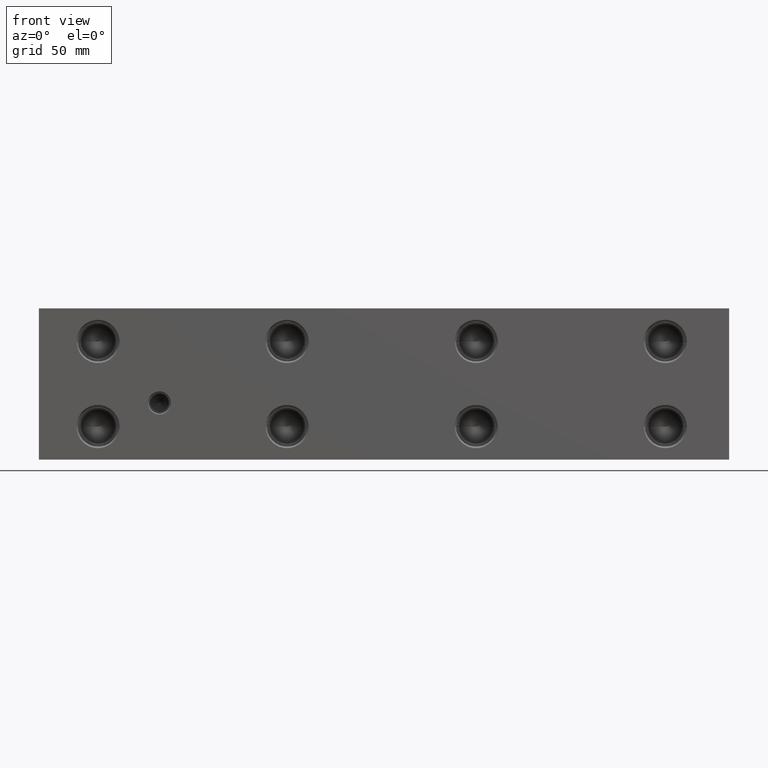
[diagram: clean part render]
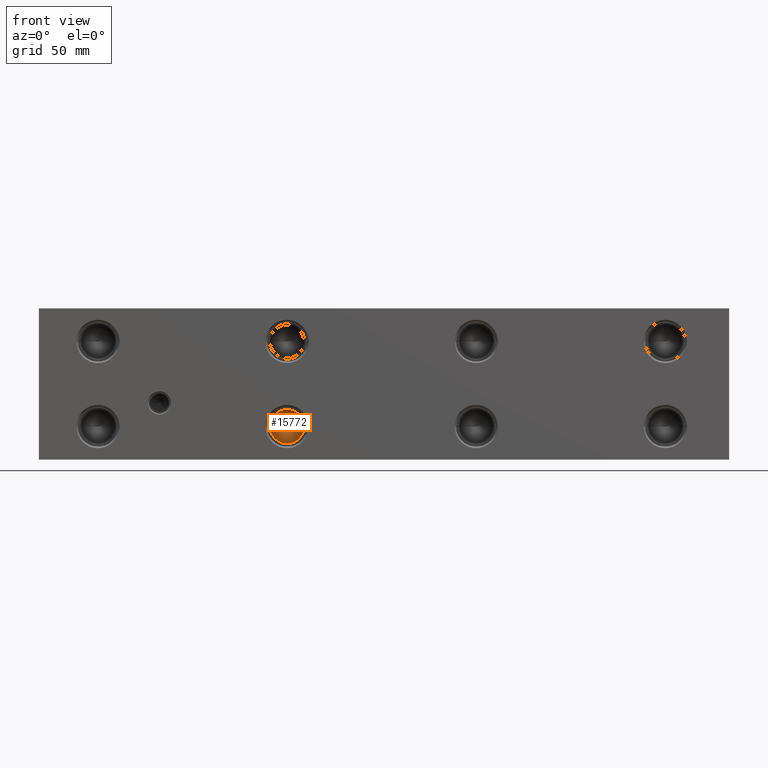
[diagram: same view with one face highlighted and labeled with its STEP entity id]
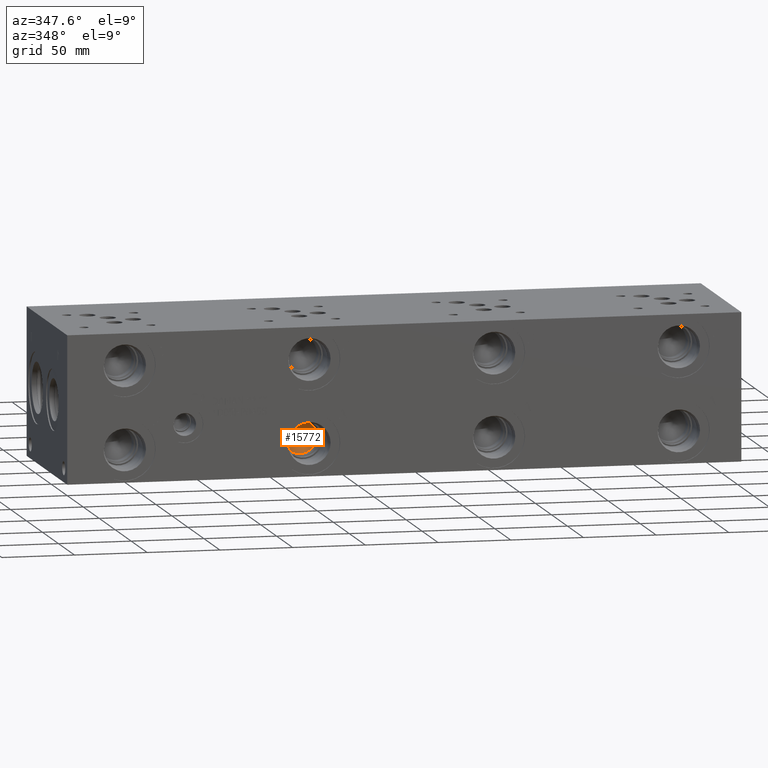
[diagram: same view with one face highlighted and labeled with its STEP entity id]
A machine part, front view. The second image highlights one B-rep face of the part: STEP entity #15772.
A second angle (auxiliary view) of the same face is appended — the face is thin or edge-on in the first view.
In plain terms, the highlighted conical surface has half-angle 60 deg.
Its self-contained STEP definition (entity closure, byte-faithful):
#53=CONICAL_SURFACE('',#16635,5.7531,1.0471975511966);
#598=CIRCLE('',#16636,11.5062);
#599=CIRCLE('',#16637,11.5062);
#2029=FACE_OUTER_BOUND('',#2949,.T.);
#2949=EDGE_LOOP('',(#13300,#13301,#13302,#13303));
#4440=LINE('',#26690,#5839);
#5839=VECTOR('',#19708,5.7531);
#7203=VERTEX_POINT('',#26686);
#7204=VERTEX_POINT('',#26687);
#7205=VERTEX_POINT('',#26689);
#9317=EDGE_CURVE('',#7203,#7204,#598,.T.);
#9318=EDGE_CURVE('',#7204,#7205,#4440,.T.);
#9319=EDGE_CURVE('',#7204,#7203,#599,.T.);
#13300=ORIENTED_EDGE('',*,*,#9317,.T.);
#13301=ORIENTED_EDGE('',*,*,#9318,.T.);
#13302=ORIENTED_EDGE('',*,*,#9318,.F.);
#13303=ORIENTED_EDGE('',*,*,#9319,.T.);
#15772=ADVANCED_FACE('',(#2029),#53,.F.);
#16635=AXIS2_PLACEMENT_3D('',#26685,#19704,#19705);
#16636=AXIS2_PLACEMENT_3D('',#26688,#19706,#19707);
#16637=AXIS2_PLACEMENT_3D('',#26691,#19709,#19710);
#19704=DIRECTION('center_axis',(0.,-1.,0.));
#19705=DIRECTION('ref_axis',(1.,0.,0.));
#19706=DIRECTION('center_axis',(0.,-1.,0.));
#19707=DIRECTION('ref_axis',(1.,0.,0.));
#19708=DIRECTION('',(0.866025403784439,0.5,1.06057523872491E-16));
#19709=DIRECTION('center_axis',(0.,-1.,0.));
#19710=DIRECTION('ref_axis',(1.,0.,0.));
#26685=CARTESIAN_POINT('Origin',(166.6748,34.1787738336748,22.225));
#26686=CARTESIAN_POINT('',(178.181,30.85722,22.225));
#26687=CARTESIAN_POINT('',(155.1686,30.85722,22.225));
#26688=CARTESIAN_POINT('Origin',(166.6748,30.85722,22.225));
#26689=CARTESIAN_POINT('',(166.6748,37.5003276673497,22.225));
#26690=CARTESIAN_POINT('',(160.9217,34.1787738336748,22.225));
#26691=CARTESIAN_POINT('Origin',(166.6748,30.85722,22.225));